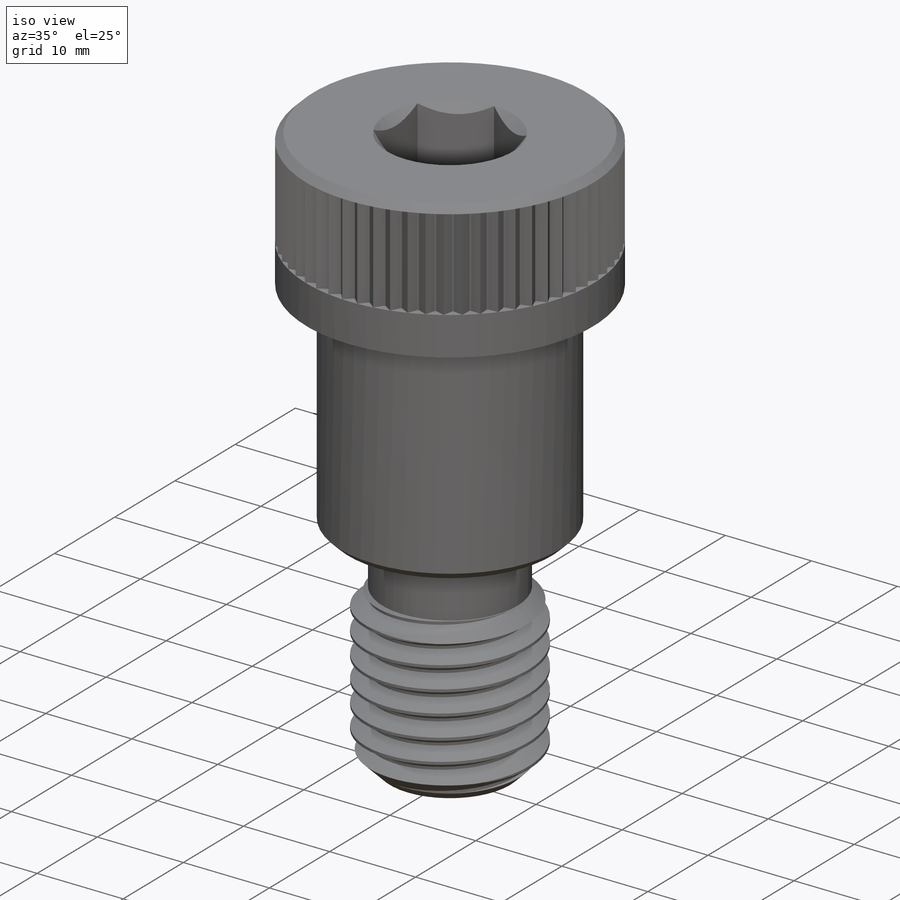
[diagram: iso view]
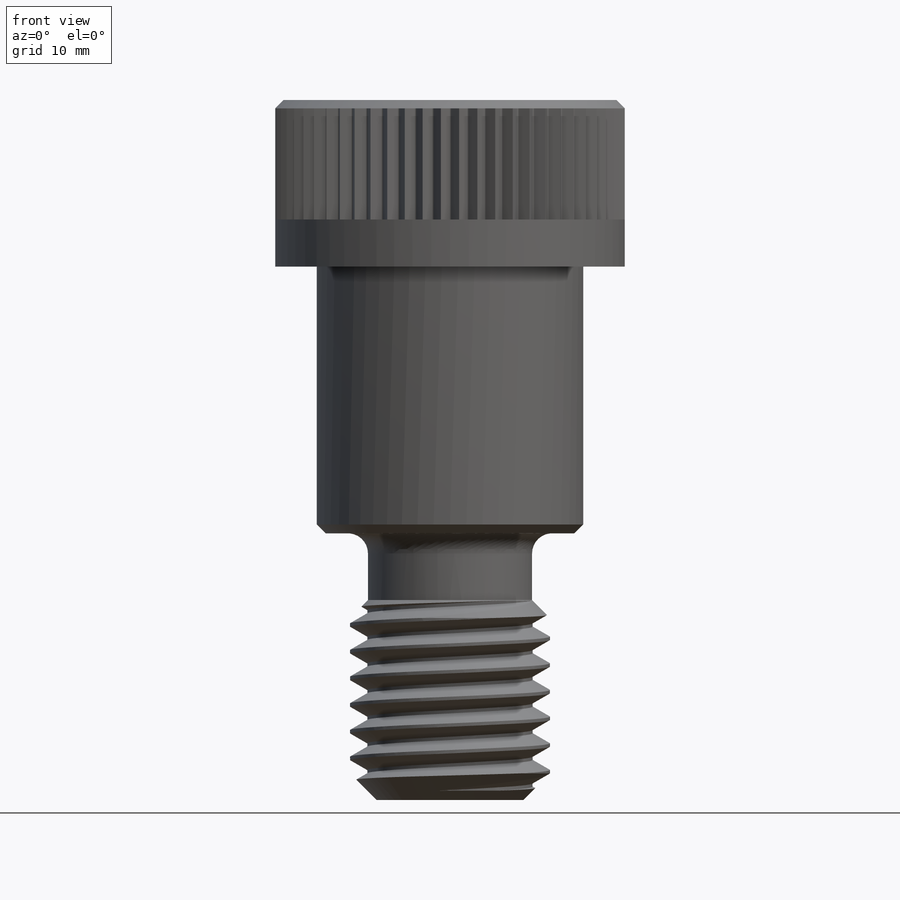
[diagram: front view]
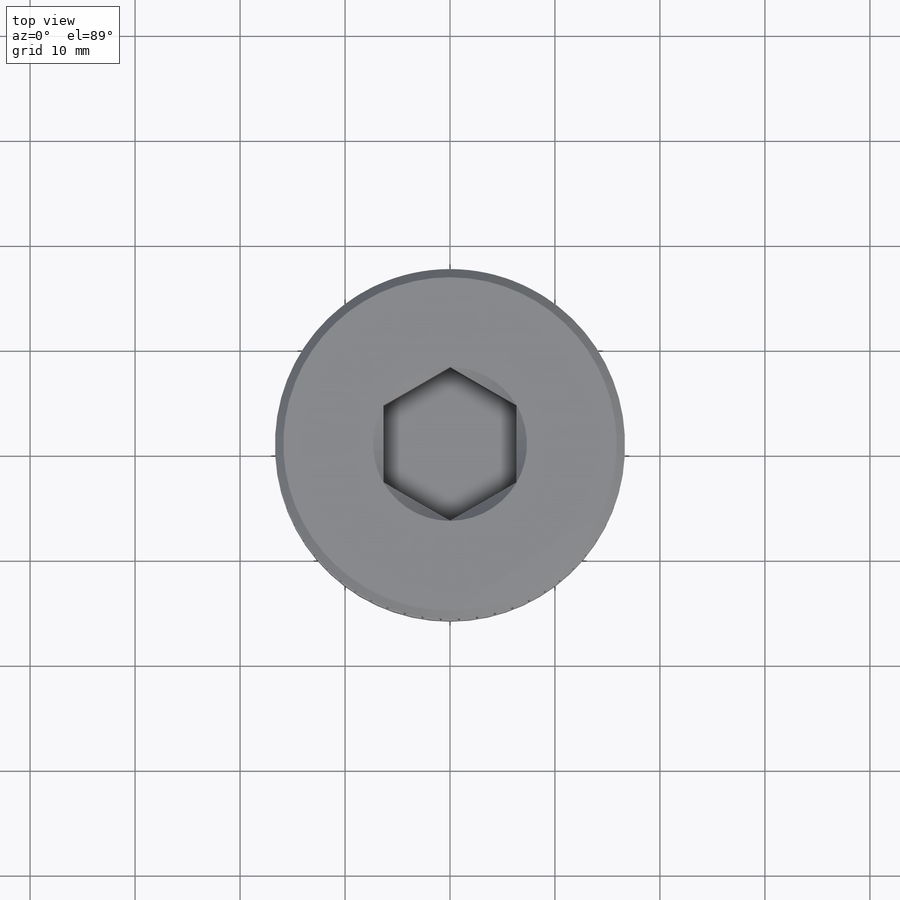
[diagram: top view]
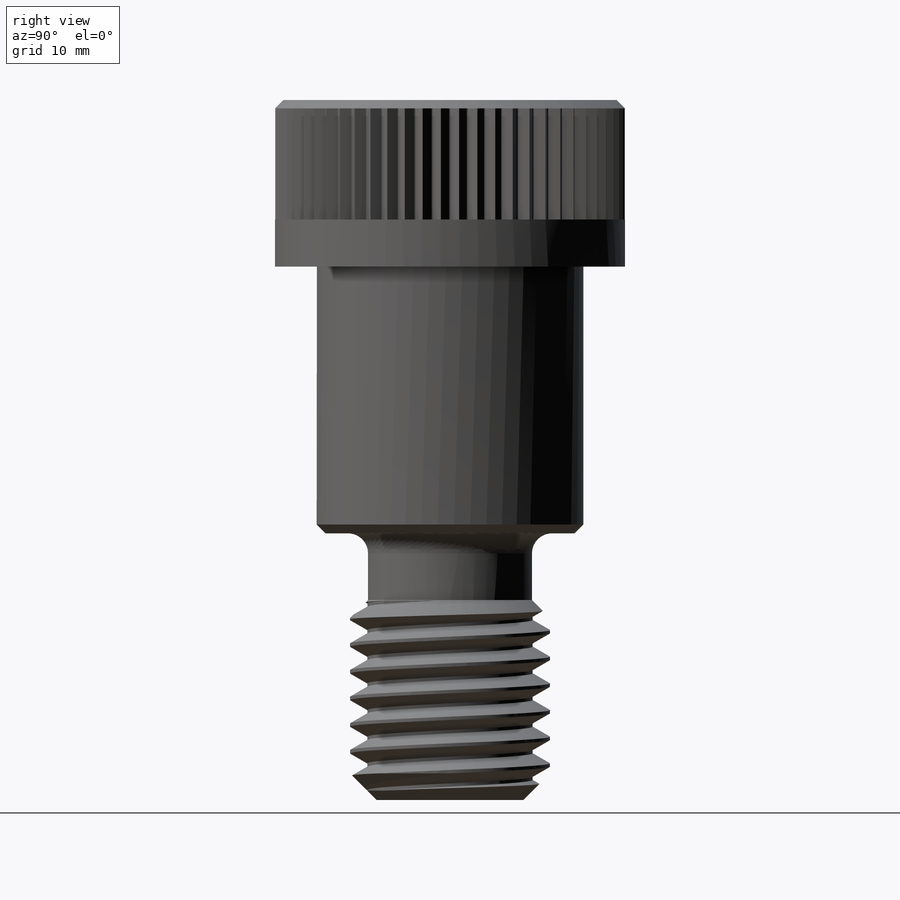
[diagram: right view]
SOLIDWORKS PART (.sldprt)
format: sldprt  version: not decoded by parser v0  size: 1,296,384 bytes
history: native  units: mm
features: sketch x12, extrude x3, cut_extrude x3, chamfer x3, plane x2, material x1, helix x1, sweep x1, cut_revolve x1, pattern_circular x1 (+14 scaffold rows collapsed)
feature tree (42):
  scaffold x14  (default folders/planes/origin — collapsed)
  material  "Plain Carbon Steel"
  sketch  "Sketch1"  dims[Head Dia=33.3375mm]
  extrude  "Extrude1"  Depth=15.875mm Head Ht=15.875mm
  sketch  "Sketch2"  dims[Hex Key=12.7mm D1=~4.582718mm]
  cut_extrude  "Cut-Extrude1"  Depth=7.9375mm
  sketch  "Sketch18"
  cut_extrude  "Cut-Extrude4"  Depth=2.645833mm
  plane  "Plane2"  Offset=25.4mm sh length=25.4mm
  sketch  "Sketch4"  dims[Shoulder Dia=25.4mm]
  extrude  "Extrude2"  Depth=25.4mm Shoulder Length=25.4mm
  sketch  "Sketch5"  dims[Thread Dia=19.05mm]
  extrude  "Extrude3"  Depth=25.4mm Thread Length=25.4mm
  sketch  "Sketch16"  dims[D1=9.525mm]
  chamfer  "Chamfer1"  Distance=2.54mm Angle=45deg
  sketch  "Sketch12"
  helix  "Helix/Spiral1"  Pitch=24.13mm Thread Pitch =2.54mm
  sketch  "Sketch13"  dims[c1.D1=~1.910764mm c2.D1=60.0deg c2.D2=0.3175mm c2.D3=1.27mm]
  sweep  "Cut-Sweep1"
  sketch  "Sketch17"  dims[c1.Thread Neck Fillet=1.905mm c1.D1=~2.822222mm c1.D2=11.1125mm c1.D3=~53.020485mm c2.D3=45.0deg c2.Thread Neck Width=6.35mm c2.Thread Neck Diameter=18.4404mm c2.D1=~0.059213mm]
  cut_revolve  "Cut-Revolve1"  Angle=360deg
  chamfer  "Chamfer2"  Distance=0.846667mm Angle=45deg
  plane  "Plane1"  Offset=0.79375mm
  sketch  "Sketch10"  dims[c1.D4=0.1524mm c1.D1=~11.293235mm c2.D1=20.0deg c3.D1=~0.981895mm c4.D1=90.0deg c4.D2=~11.925286mm c5.D2=6.0deg c5.D3=~0.244048mm]
  cut_extrude  "Cut-Extrude3"  Depth=10.583333mm
  pattern_circular  "CirPattern2"  Count=60 Angle=360deg
  chamfer  "Chamfer3"  Distance=0.79375mm Angle=45deg
  sketch  "Sketch14"
  sketch  "Sketch15"
decode coverage: 20 of 25 modeling features carry decoded parameters
note: ~ marks probable driven/reference dimensions
note: suppression state not decoded; provenance and decode notes live in map.json
